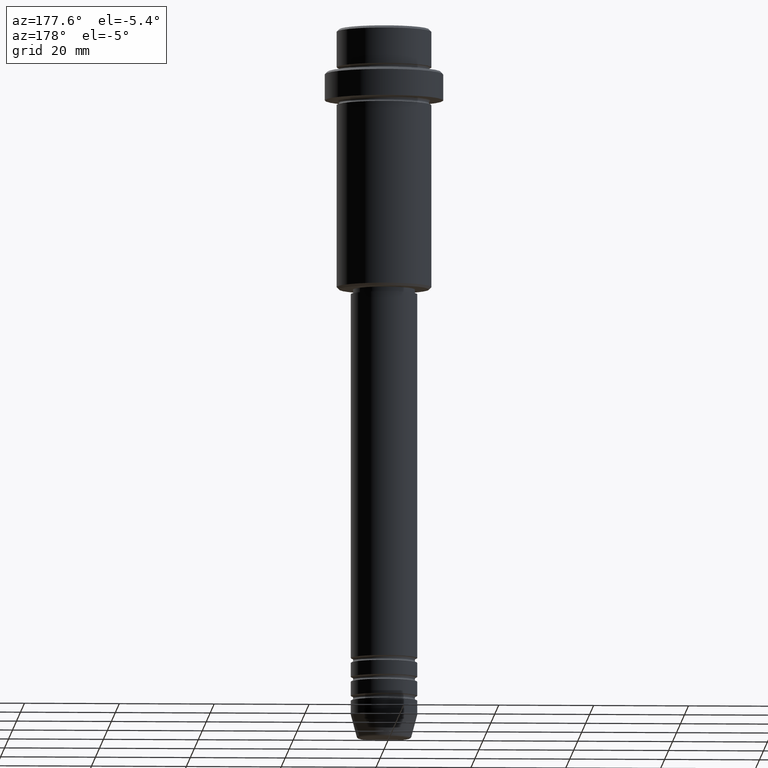
[diagram: clean part render]
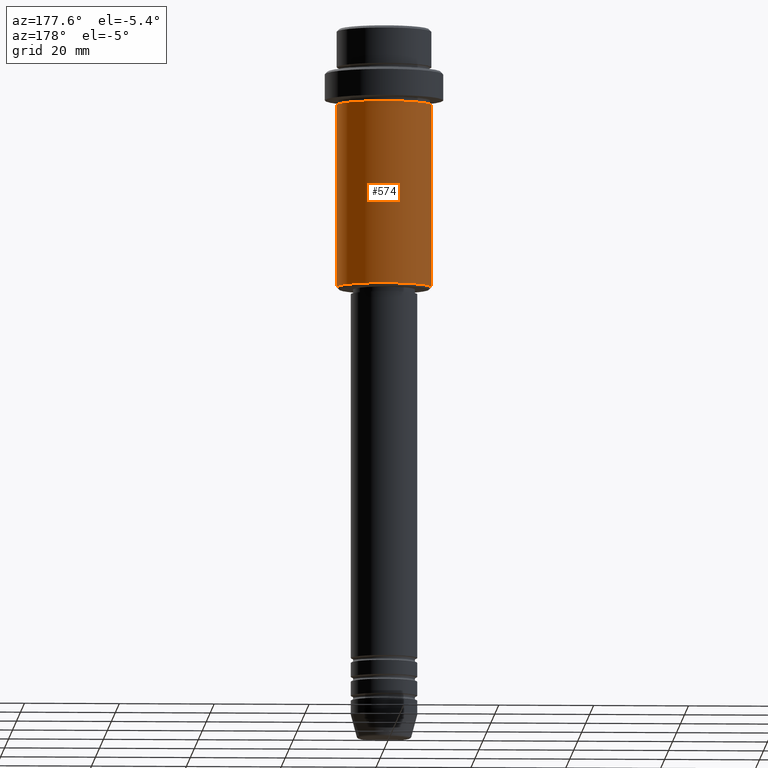
[diagram: same view with one face highlighted and labeled with its STEP entity id]
A machine part, auxiliary view. The second image highlights one B-rep face of the part: STEP entity #574.
In plain terms, the highlighted cylindrical surface (partial cylindrical patch) has radius 10 mm, axis along (-0, -0, 1).
Its self-contained STEP definition (entity closure, byte-faithful):
#30 = EDGE_CURVE ( 'NONE', #1091, #1097, #124, .T. ) ;
#72 = CARTESIAN_POINT ( 'NONE',  ( 0.000000000000000000, 0.000000000000000000, -54.49999999999997868 ) ) ;
#96 = CARTESIAN_POINT ( 'NONE',  ( 0.000000000000000000, 0.000000000000000000, -16.00000000000000000 ) ) ;
#124 = LINE ( 'NONE', #768, #473 ) ;
#160 = ORIENTED_EDGE ( 'NONE', *, *, #1022, .T. ) ;
#179 = CIRCLE ( 'NONE', #534, 10.00000000000000000 ) ;
#187 = CARTESIAN_POINT ( 'NONE',  ( -10.00000000000000000, 1.224646799147353256E-15, -16.00000000000000000 ) ) ;
#234 = DIRECTION ( 'NONE',  ( -0.000000000000000000, -0.000000000000000000, 1.000000000000000000 ) ) ;
#320 = CARTESIAN_POINT ( 'NONE',  ( -10.00000000000000000, 1.224646799147353256E-15, -54.49999999999997868 ) ) ;
#364 = ORIENTED_EDGE ( 'NONE', *, *, #30, .T. ) ;
#372 = AXIS2_PLACEMENT_3D ( 'NONE', #529, #963, #1171 ) ;
#421 = CARTESIAN_POINT ( 'NONE',  ( 10.00000000000000000, 0.000000000000000000, -16.00000000000000000 ) ) ;
#473 = VECTOR ( 'NONE', #234, 1000.000000000000000 ) ;
#505 = DIRECTION ( 'NONE',  ( -1.000000000000000000, 0.000000000000000000, 0.000000000000000000 ) ) ;
#526 = DIRECTION ( 'NONE',  ( -0.000000000000000000, -0.000000000000000000, 1.000000000000000000 ) ) ;
#529 = CARTESIAN_POINT ( 'NONE',  ( 0.000000000000000000, 0.000000000000000000, 0.000000000000000000 ) ) ;
#534 = AXIS2_PLACEMENT_3D ( 'NONE', #72, #1166, #505 ) ;
#574 = ADVANCED_FACE ( 'NONE', ( #1050 ), #951, .T. ) ;
#643 = ORIENTED_EDGE ( 'NONE', *, *, #1116, .F. ) ;
#750 = LINE ( 'NONE', #1187, #1155 ) ;
#763 = VERTEX_POINT ( 'NONE', #792 ) ;
#768 = CARTESIAN_POINT ( 'NONE',  ( -10.00000000000000000, 1.224646799147353256E-15, 0.000000000000000000 ) ) ;
#778 = ORIENTED_EDGE ( 'NONE', *, *, #1115, .F. ) ;
#792 = CARTESIAN_POINT ( 'NONE',  ( 10.00000000000000000, 0.000000000000000000, -54.49999999999997868 ) ) ;
#894 = EDGE_LOOP ( 'NONE', ( #160, #364, #778, #643 ) ) ;
#948 = DIRECTION ( 'NONE',  ( -0.000000000000000000, -0.000000000000000000, 1.000000000000000000 ) ) ;
#951 = CYLINDRICAL_SURFACE ( 'NONE', #372, 10.00000000000000000 ) ;
#963 = DIRECTION ( 'NONE',  ( -0.000000000000000000, -0.000000000000000000, 1.000000000000000000 ) ) ;
#969 = DIRECTION ( 'NONE',  ( 1.000000000000000000, 0.000000000000000000, 0.000000000000000000 ) ) ;
#1022 = EDGE_CURVE ( 'NONE', #763, #1091, #179, .T. ) ;
#1039 = CIRCLE ( 'NONE', #1336, 10.00000000000000000 ) ;
#1050 = FACE_OUTER_BOUND ( 'NONE', #894, .T. ) ;
#1087 = VERTEX_POINT ( 'NONE', #421 ) ;
#1091 = VERTEX_POINT ( 'NONE', #320 ) ;
#1097 = VERTEX_POINT ( 'NONE', #187 ) ;
#1115 = EDGE_CURVE ( 'NONE', #1087, #1097, #1039, .T. ) ;
#1116 = EDGE_CURVE ( 'NONE', #763, #1087, #750, .T. ) ;
#1155 = VECTOR ( 'NONE', #948, 1000.000000000000000 ) ;
#1166 = DIRECTION ( 'NONE',  ( -0.000000000000000000, -0.000000000000000000, 1.000000000000000000 ) ) ;
#1171 = DIRECTION ( 'NONE',  ( 1.000000000000000000, 0.000000000000000000, 0.000000000000000000 ) ) ;
#1187 = CARTESIAN_POINT ( 'NONE',  ( 10.00000000000000000, 0.000000000000000000, 0.000000000000000000 ) ) ;
#1336 = AXIS2_PLACEMENT_3D ( 'NONE', #96, #526, #969 ) ;